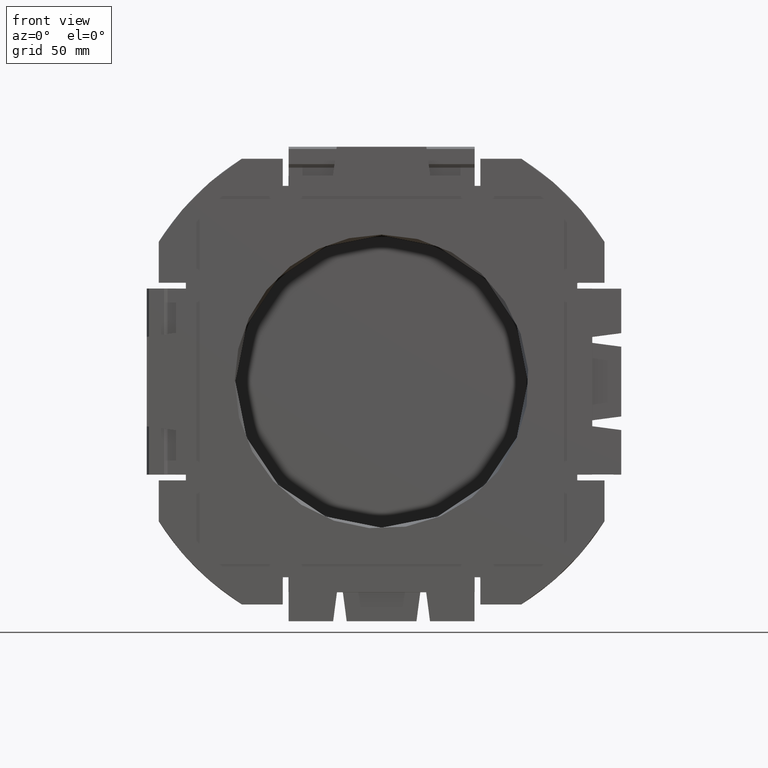
[diagram: clean part render]
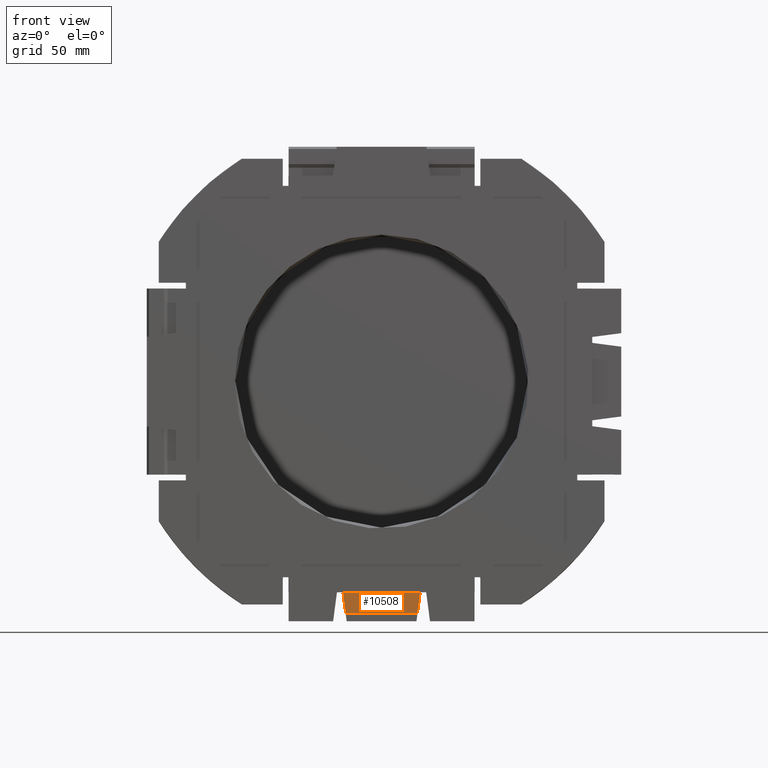
[diagram: same view with one face highlighted and labeled with its STEP entity id]
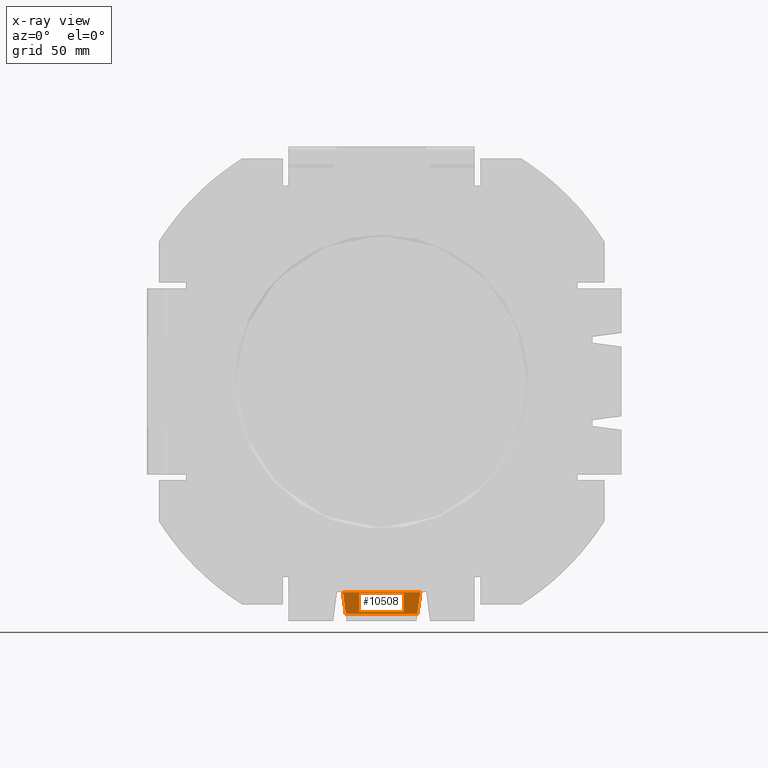
[diagram: x-ray of the same camera — body ghosted, the highlighted face saturated]
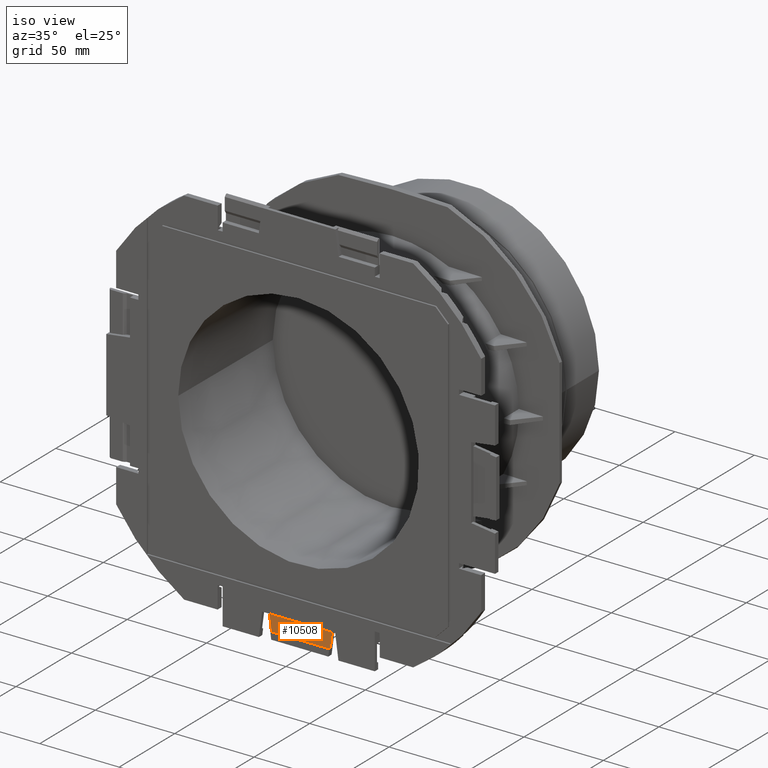
[diagram: same view with one face highlighted and labeled with its STEP entity id]
A machine part, front view. The second image highlights one B-rep face of the part: STEP entity #10508.
The next image is the same camera in x-ray: the body ghosted, the highlighted face saturated — about 0% of this face is hidden behind the body in this view.
A second angle (iso view) of the same face is appended — the face is thin or edge-on in the first view.
In plain terms, the highlighted planar face has unit normal (0, 1, 0).
Its self-contained STEP definition (entity closure, byte-faithful):
#1184=FACE_OUTER_BOUND('',#1742,.T.);
#1742=EDGE_LOOP('',(#8948,#8949,#8950,#8951));
#2732=LINE('',#20107,#3716);
#2737=LINE('',#20116,#3721);
#2739=LINE('',#20119,#3723);
#2740=LINE('',#20120,#3724);
#3716=VECTOR('',#13675,10.);
#3721=VECTOR('',#13684,10.);
#3723=VECTOR('',#13688,10.);
#3724=VECTOR('',#13689,10.);
#4665=VERTEX_POINT('',#19974);
#4669=VERTEX_POINT('',#19981);
#4690=VERTEX_POINT('',#20106);
#4692=VERTEX_POINT('',#20115);
#6133=EDGE_CURVE('',#4665,#4690,#2732,.F.);
#6138=EDGE_CURVE('',#4692,#4690,#2737,.T.);
#6140=EDGE_CURVE('',#4665,#4669,#2739,.T.);
#6141=EDGE_CURVE('',#4692,#4669,#2740,.F.);
#8948=ORIENTED_EDGE('',*,*,#6133,.F.);
#8949=ORIENTED_EDGE('',*,*,#6140,.T.);
#8950=ORIENTED_EDGE('',*,*,#6141,.F.);
#8951=ORIENTED_EDGE('',*,*,#6138,.T.);
#9447=PLANE('',#11281);
#10508=ADVANCED_FACE('',(#1184),#9447,.F.);
#11281=AXIS2_PLACEMENT_3D('',#20118,#13686,#13687);
#13675=DIRECTION('',(0.132163720091018,-4.03510813929197E-17,0.991227900682635));
#13684=DIRECTION('',(1.,-3.05311331771918E-16,-1.69481835106077E-31));
#13686=DIRECTION('center_axis',(3.05311331771918E-16,1.,0.));
#13687=DIRECTION('ref_axis',(-1.,3.05311331771918E-16,0.));
#13688=DIRECTION('',(-1.,3.05311331771918E-16,0.));
#13689=DIRECTION('',(0.132163720091018,-4.03510813929197E-17,-0.991227900682635));
#19974=CARTESIAN_POINT('',(19.9823904624595,-86.5,-108.7));
#19981=CARTESIAN_POINT('',(-19.9823904624595,-86.5,-108.7));
#20106=CARTESIAN_POINT('',(18.5157237957929,-86.5,-119.7));
#20107=CARTESIAN_POINT('',(18.5001653015432,-86.5,-119.816688706872));
#20115=CARTESIAN_POINT('',(-18.5157237957929,-86.5,-119.7));
#20116=CARTESIAN_POINT('',(20.,-86.5,-119.7));
#20118=CARTESIAN_POINT('Origin',(20.,-86.5,-123.7));
#20119=CARTESIAN_POINT('',(-20.,-86.5,-108.7));
#20120=CARTESIAN_POINT('',(-18.1508203233773,-86.5,-122.436776043117));